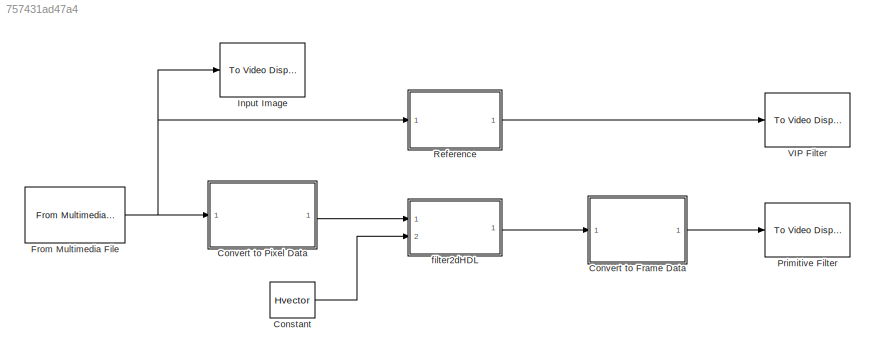
MODEL slx_757431ad47a4
KIND model
CONFIG AbsTol = auto
CONFIG FixedStep = auto
CONFIG MaxStep = auto
CONFIG MinStep = auto
CONFIG PreLoadFcn = Param_vip_vector
CONFIG RelTol = 1e-3
CONFIG SampleTimeConstraint = Unconstrained
CONFIG Solver = FixedStepDiscrete
CONFIG SolverMode = SingleTasking
CONFIG SolverName = FixedStepDiscrete
CONFIG StartTime = 0.0
CONFIG StopTime = 1
BLOCK [Constant] Constant
  OutDataTypeStr = dt_Hvector
  SampleTime = -1
  Value = Hvector
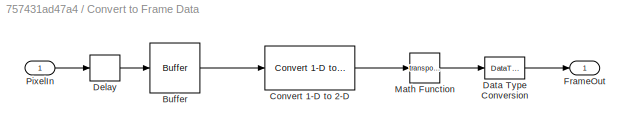
BLOCK [SubSystem] Convert to Frame Data
  Ports = [1, 1]
  RequestExecContextInheritance = off
  Variant = off
BLOCK [Buffer] Convert to Frame Data/Buffer
  N = 160*120
  TreatMby1Signals = One channel
BLOCK [Reference] Convert to Frame Data/Convert 1-D to 2-D  REF=dspsigattribs/Convert 1-D to 2-D
  Ports = [1, 1]
  SourceBlock = dspsigattribs/Convert 1-D to 2-D
  SourceType = Convert 1-D to 2-D
BLOCK [DataTypeConversion] Convert to Frame Data/Data Type Conversion
  OutDataTypeStr = double
  RndMeth = Floor
BLOCK [Delay] Convert to Frame Data/Delay
  DelayLength = 120*160-(160+2+3)
  InitialCondition = 0
  InputPortMap = u0
  Ports = [1, 1]
  UserDataPersistent = on
BLOCK [Outport] Convert to Frame Data/FrameOut
  IconDisplay = Port number
BLOCK [Math] Convert to Frame Data/Math Function
  Operator = transpose
  Ports = [1, 1]
BLOCK [Inport] Convert to Frame Data/PixelIn
  IconDisplay = Port number
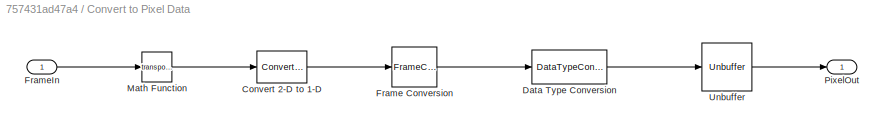
BLOCK [SubSystem] Convert to Pixel Data
  Ports = [1, 1]
  RequestExecContextInheritance = off
  Variant = off
BLOCK [Reference] Convert to Pixel Data/Convert 2-D to 1-D  REF=dspsigattribs/Convert 2-D to 1-D
  Ports = [1, 1]
  SourceBlock = dspsigattribs/Convert 2-D to 1-D
  SourceType = Convert 2-D to 1-D
BLOCK [DataTypeConversion] Convert to Pixel Data/Data Type Conversion
  OutDataTypeStr = dt_imagein
  RndMeth = Floor
BLOCK [FrameConversion] Convert to Pixel Data/Frame Conversion
  InheritSamplingMode = off
  Ports = [1, 1]
BLOCK [Inport] Convert to Pixel Data/FrameIn
  IconDisplay = Port number
BLOCK [Math] Convert to Pixel Data/Math Function
  Operator = transpose
  Ports = [1, 1]
BLOCK [Outport] Convert to Pixel Data/PixelOut
  IconDisplay = Port number
BLOCK [Unbuffer] Convert to Pixel Data/Unbuffer
  Ports = [1, 1]
  SampleBasedProcessing = Same as frame based
BLOCK [Reference] From Multimedia File  REF=dspvision/From Multimedia File
  Ports = [0, 1]
  SourceBlock = dspvision/From Multimedia File
  SourceType = From Multimedia File
BLOCK [Reference] Input Image  REF=visionsinks/To Video Display
  Ports = [1]
  SourceBlock = visionsinks/To Video Display
  SourceType = To Video Display
BLOCK [Reference] Primitive Filter  REF=visionsinks/To Video Display
  Ports = [1]
  SourceBlock = visionsinks/To Video Display
  SourceType = To Video Display
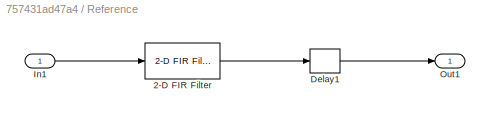
BLOCK [SubSystem] Reference
  Ports = [1, 1]
  RequestExecContextInheritance = off
  Variant = off
BLOCK [Reference] Reference/2-D FIR Filter  REF=visionfilter/2-D FIR Filter
  Ports = [1, 1]
  SourceBlock = visionfilter/2-D FIR Filter
  SourceType = 2-D FIR Filter
BLOCK [Delay] Reference/Delay1
  DelayLength = 3
  InitialCondition = 0
  InputPortMap = u0
  Ports = [1, 1]
  UserDataPersistent = on
BLOCK [Inport] Reference/In1
  IconDisplay = Port number
BLOCK [Outport] Reference/Out1
  IconDisplay = Port number
BLOCK [Reference] VIP Filter  REF=visionsinks/To Video Display
  Ports = [1]
  SourceBlock = visionsinks/To Video Display
  SourceType = To Video Display
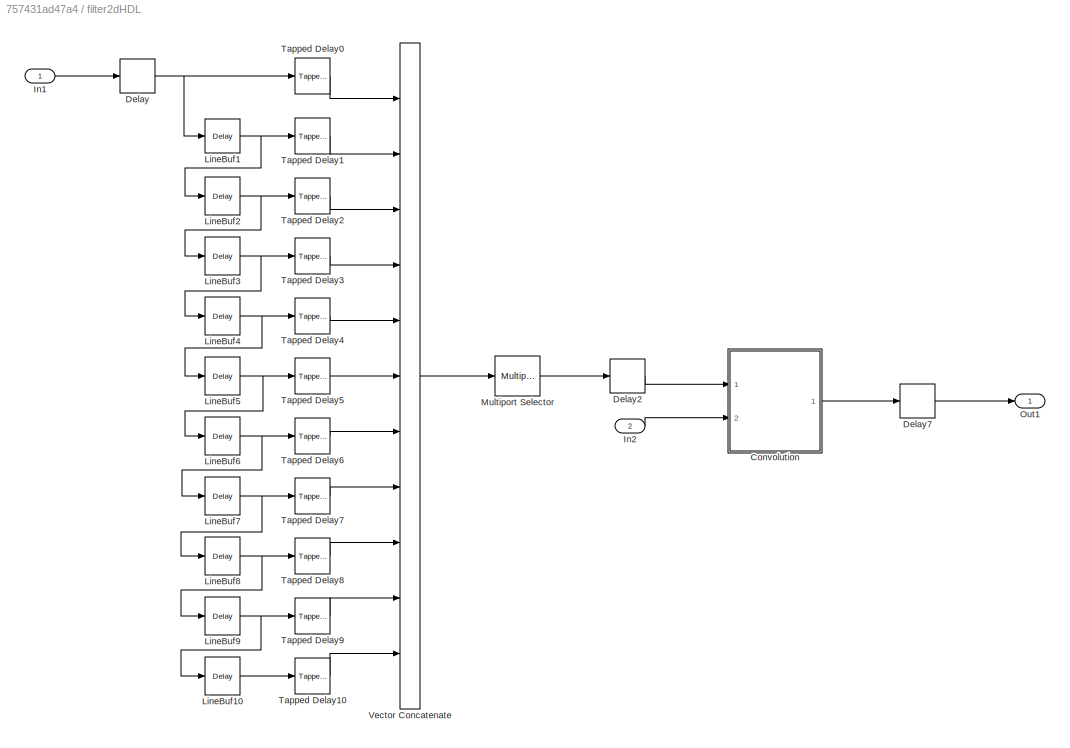
BLOCK [SubSystem] filter2dHDL
  Ports = [2, 1]
  RequestExecContextInheritance = off
  Variant = off
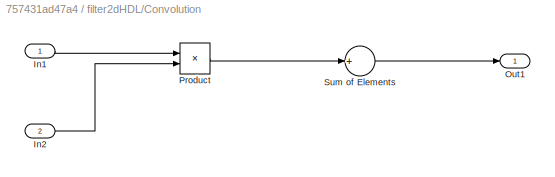
BLOCK [SubSystem] filter2dHDL/Convolution
  Ports = [2, 1]
  RequestExecContextInheritance = off
  Variant = off
BLOCK [Inport] filter2dHDL/Convolution/In1
  IconDisplay = Port number
BLOCK [Inport] filter2dHDL/Convolution/In2
  IconDisplay = Port number
  Port = 2
BLOCK [Outport] filter2dHDL/Convolution/Out1
  IconDisplay = Port number
BLOCK [Product] filter2dHDL/Convolution/Product
  InputSameDT = off
  OutDataTypeStr = dt_product
  Ports = [2, 1]
  SaturateOnIntegerOverflow = off
BLOCK [Sum] filter2dHDL/Convolution/Sum of Elements
  InputSameDT = off
  Inputs = +
  OutDataTypeStr = dt_sum
  Ports = [1, 1]
  RndMeth = Nearest
  SaturateOnIntegerOverflow = off
BLOCK [Delay] filter2dHDL/Delay
  DelayLength = 1
  InputPortMap = u0
  Ports = [1, 1]
BLOCK [Delay] filter2dHDL/Delay2
  DelayLength = 1
  InputPortMap = u0
  Ports = [1, 1]
BLOCK [Delay] filter2dHDL/Delay7
  DelayLength = 1
  InputPortMap = u0
  Ports = [1, 1]
BLOCK [Inport] filter2dHDL/In1
  IconDisplay = Port number
BLOCK [Inport] filter2dHDL/In2
  IconDisplay = Port number
  Port = 2
BLOCK [Reference] filter2dHDL/LineBuf1  REF=dspobslib/Delay
  Ports = [1, 1]
  SourceBlock = dspobslib/Delay
  SourceType = Delay
  UserDataPersistent = on
BLOCK [Reference] filter2dHDL/LineBuf10  REF=dspobslib/Delay
  Ports = [1, 1]
  SourceBlock = dspobslib/Delay
  SourceType = Delay
  UserDataPersistent = on
BLOCK [Reference] filter2dHDL/LineBuf2  REF=dspobslib/Delay
  Ports = [1, 1]
  SourceBlock = dspobslib/Delay
  SourceType = Delay
  UserDataPersistent = on
BLOCK [Reference] filter2dHDL/LineBuf3  REF=dspobslib/Delay
  Ports = [1, 1]
  SourceBlock = dspobslib/Delay
  SourceType = Delay
  UserDataPersistent = on
BLOCK [Reference] filter2dHDL/LineBuf4  REF=dspobslib/Delay
  Ports = [1, 1]
  SourceBlock = dspobslib/Delay
  SourceType = Delay
  UserDataPersistent = on
BLOCK [Reference] filter2dHDL/LineBuf5  REF=dspobslib/Delay
  Ports = [1, 1]
  SourceBlock = dspobslib/Delay
  SourceType = Delay
  UserDataPersistent = on
BLOCK [Reference] filter2dHDL/LineBuf6  REF=dspobslib/Delay
  Ports = [1, 1]
  SourceBlock = dspobslib/Delay
  SourceType = Delay
  UserDataPersistent = on
BLOCK [Reference] filter2dHDL/LineBuf7  REF=dspobslib/Delay
  Ports = [1, 1]
  SourceBlock = dspobslib/Delay
  SourceType = Delay
  UserDataPersistent = on
BLOCK [Reference] filter2dHDL/LineBuf8  REF=dspobslib/Delay
  Ports = [1, 1]
  SourceBlock = dspobslib/Delay
  SourceType = Delay
  UserDataPersistent = on
BLOCK [Reference] filter2dHDL/LineBuf9  REF=dspobslib/Delay
  Ports = [1, 1]
  SourceBlock = dspobslib/Delay
  SourceType = Delay
  UserDataPersistent = on
BLOCK [Reference] filter2dHDL/Multiport Selector  REF=dspindex/Multiport
Selector
  Ports = [1, 1]
  SourceBlock = dspindex/Multiport\nSelector
  SourceType = Multiport Selector
BLOCK [Outport] filter2dHDL/Out1
  IconDisplay = Port number
BLOCK [Reference] filter2dHDL/Tapped Delay0  REF=simulink/Discrete/Tapped Delay
  Ports = [1, 1]
  SourceBlock = simulink/Discrete/Tapped Delay
  SourceType = Tapped Delay Line
BLOCK [Reference] filter2dHDL/Tapped Delay1  REF=simulink/Discrete/Tapped Delay
  Ports = [1, 1]
  SourceBlock = simulink/Discrete/Tapped Delay
  SourceType = Tapped Delay Line
BLOCK [Reference] filter2dHDL/Tapped Delay10  REF=simulink/Discrete/Tapped Delay
  Ports = [1, 1]
  SourceBlock = simulink/Discrete/Tapped Delay
  SourceType = Tapped Delay Line
BLOCK [Reference] filter2dHDL/Tapped Delay2  REF=simulink/Discrete/Tapped Delay
  Ports = [1, 1]
  SourceBlock = simulink/Discrete/Tapped Delay
  SourceType = Tapped Delay Line
BLOCK [Reference] filter2dHDL/Tapped Delay3  REF=simulink/Discrete/Tapped Delay
  Ports = [1, 1]
  SourceBlock = simulink/Discrete/Tapped Delay
  SourceType = Tapped Delay Line
BLOCK [Reference] filter2dHDL/Tapped Delay4  REF=simulink/Discrete/Tapped Delay
  Ports = [1, 1]
  SourceBlock = simulink/Discrete/Tapped Delay
  SourceType = Tapped Delay Line
BLOCK [Reference] filter2dHDL/Tapped Delay5  REF=simulink/Discrete/Tapped Delay
  Ports = [1, 1]
  SourceBlock = simulink/Discrete/Tapped Delay
  SourceType = Tapped Delay Line
BLOCK [Reference] filter2dHDL/Tapped Delay6  REF=simulink/Discrete/Tapped Delay
  Ports = [1, 1]
  SourceBlock = simulink/Discrete/Tapped Delay
  SourceType = Tapped Delay Line
BLOCK [Reference] filter2dHDL/Tapped Delay7  REF=simulink/Discrete/Tapped Delay
  Ports = [1, 1]
  SourceBlock = simulink/Discrete/Tapped Delay
  SourceType = Tapped Delay Line
BLOCK [Reference] filter2dHDL/Tapped Delay8  REF=simulink/Discrete/Tapped Delay
  Ports = [1, 1]
  SourceBlock = simulink/Discrete/Tapped Delay
  SourceType = Tapped Delay Line
BLOCK [Reference] filter2dHDL/Tapped Delay9  REF=simulink/Discrete/Tapped Delay
  Ports = [1, 1]
  SourceBlock = simulink/Discrete/Tapped Delay
  SourceType = Tapped Delay Line
BLOCK [Concatenate] filter2dHDL/Vector Concatenate
  NumInputs = 11
  Ports = [11, 1]
LINE Constant:1 -> filter2dHDL:2
LINE Convert to Frame Data/Buffer:1 -> Convert to Frame Data/Convert 1-D to 2-D:1
LINE Convert to Frame Data/Convert 1-D to 2-D:1 -> Convert to Frame Data/Math Function:1
LINE Convert to Frame Data/Data Type Conversion:1 -> Convert to Frame Data/FrameOut:1
LINE Convert to Frame Data/Delay:1 -> Convert to Frame Data/Buffer:1
LINE Convert to Frame Data/Math Function:1 -> Convert to Frame Data/Data Type Conversion:1
LINE Convert to Frame Data/PixelIn:1 -> Convert to Frame Data/Delay:1
LINE Convert to Frame Data:1 -> Primitive Filter:1
LINE Convert to Pixel Data/Convert 2-D to 1-D:1 -> Convert to Pixel Data/Frame Conversion:1
LINE Convert to Pixel Data/Data Type Conversion:1 -> Convert to Pixel Data/Unbuffer:1
LINE Convert to Pixel Data/Frame Conversion:1 -> Convert to Pixel Data/Data Type Conversion:1
LINE Convert to Pixel Data/FrameIn:1 -> Convert to Pixel Data/Math Function:1
LINE Convert to Pixel Data/Math Function:1 -> Convert to Pixel Data/Convert 2-D to 1-D:1
LINE Convert to Pixel Data/Unbuffer:1 -> Convert to Pixel Data/PixelOut:1
LINE Convert to Pixel Data:1 -> filter2dHDL:1
NET From Multimedia File:1 -> Convert to Pixel Data:1, Input Image:1, Reference:1
LINE Reference/2-D FIR Filter:1 -> Reference/Delay1:1
LINE Reference/Delay1:1 -> Reference/Out1:1
LINE Reference/In1:1 -> Reference/2-D FIR Filter:1
LINE Reference:1 -> VIP Filter:1
LINE filter2dHDL/Convolution/In1:1 -> filter2dHDL/Convolution/Product:1
LINE filter2dHDL/Convolution/In2:1 -> filter2dHDL/Convolution/Product:2
LINE filter2dHDL/Convolution/Product:1 -> filter2dHDL/Convolution/Sum of Elements:1
LINE filter2dHDL/Convolution/Sum of Elements:1 -> filter2dHDL/Convolution/Out1:1
LINE filter2dHDL/Convolution:1 -> filter2dHDL/Delay7:1
LINE filter2dHDL/Delay2:1 -> filter2dHDL/Convolution:1
LINE filter2dHDL/Delay7:1 -> filter2dHDL/Out1:1
NET filter2dHDL/Delay:1 -> filter2dHDL/LineBuf1:1, filter2dHDL/Tapped Delay0:1
LINE filter2dHDL/In1:1 -> filter2dHDL/Delay:1
LINE filter2dHDL/In2:1 -> filter2dHDL/Convolution:2
LINE filter2dHDL/LineBuf10:1 -> filter2dHDL/Tapped Delay10:1
NET filter2dHDL/LineBuf1:1 -> filter2dHDL/LineBuf2:1, filter2dHDL/Tapped Delay1:1
NET filter2dHDL/LineBuf2:1 -> filter2dHDL/LineBuf3:1, filter2dHDL/Tapped Delay2:1
NET filter2dHDL/LineBuf3:1 -> filter2dHDL/LineBuf4:1, filter2dHDL/Tapped Delay3:1
NET filter2dHDL/LineBuf4:1 -> filter2dHDL/LineBuf5:1, filter2dHDL/Tapped Delay4:1
NET filter2dHDL/LineBuf5:1 -> filter2dHDL/LineBuf6:1, filter2dHDL/Tapped Delay5:1
NET filter2dHDL/LineBuf6:1 -> filter2dHDL/LineBuf7:1, filter2dHDL/Tapped Delay6:1
NET filter2dHDL/LineBuf7:1 -> filter2dHDL/LineBuf8:1, filter2dHDL/Tapped Delay7:1
NET filter2dHDL/LineBuf8:1 -> filter2dHDL/LineBuf9:1, filter2dHDL/Tapped Delay8:1
NET filter2dHDL/LineBuf9:1 -> filter2dHDL/LineBuf10:1, filter2dHDL/Tapped Delay9:1
LINE filter2dHDL/Multiport Selector:1 -> filter2dHDL/Delay2:1
LINE filter2dHDL/Tapped Delay0:1 -> filter2dHDL/Vector Concatenate:1
LINE filter2dHDL/Tapped Delay10:1 -> filter2dHDL/Vector Concatenate:11
LINE filter2dHDL/Tapped Delay1:1 -> filter2dHDL/Vector Concatenate:2
LINE filter2dHDL/Tapped Delay2:1 -> filter2dHDL/Vector Concatenate:3
LINE filter2dHDL/Tapped Delay3:1 -> filter2dHDL/Vector Concatenate:4
LINE filter2dHDL/Tapped Delay4:1 -> filter2dHDL/Vector Concatenate:5
LINE filter2dHDL/Tapped Delay5:1 -> filter2dHDL/Vector Concatenate:6
LINE filter2dHDL/Tapped Delay6:1 -> filter2dHDL/Vector Concatenate:7
LINE filter2dHDL/Tapped Delay7:1 -> filter2dHDL/Vector Concatenate:8
LINE filter2dHDL/Tapped Delay8:1 -> filter2dHDL/Vector Concatenate:9
LINE filter2dHDL/Tapped Delay9:1 -> filter2dHDL/Vector Concatenate:10
LINE filter2dHDL/Vector Concatenate:1 -> filter2dHDL/Multiport Selector:1
LINE filter2dHDL:1 -> Convert to Frame Data:1
note: NET lines group one-source signal fan-out (src -> all destinations, sorted); 1:1 wires keep LINE
